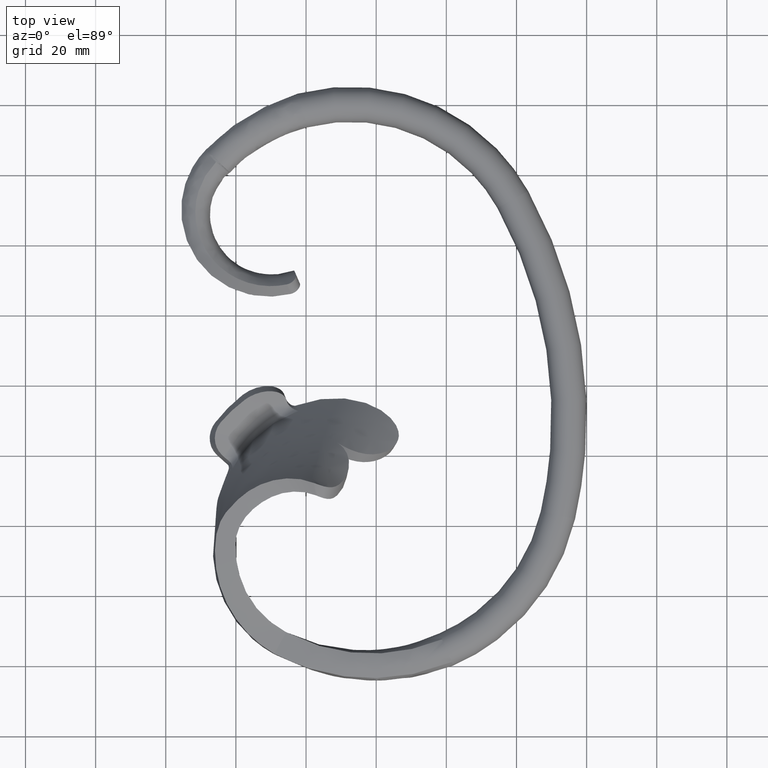
[diagram: clean part render]
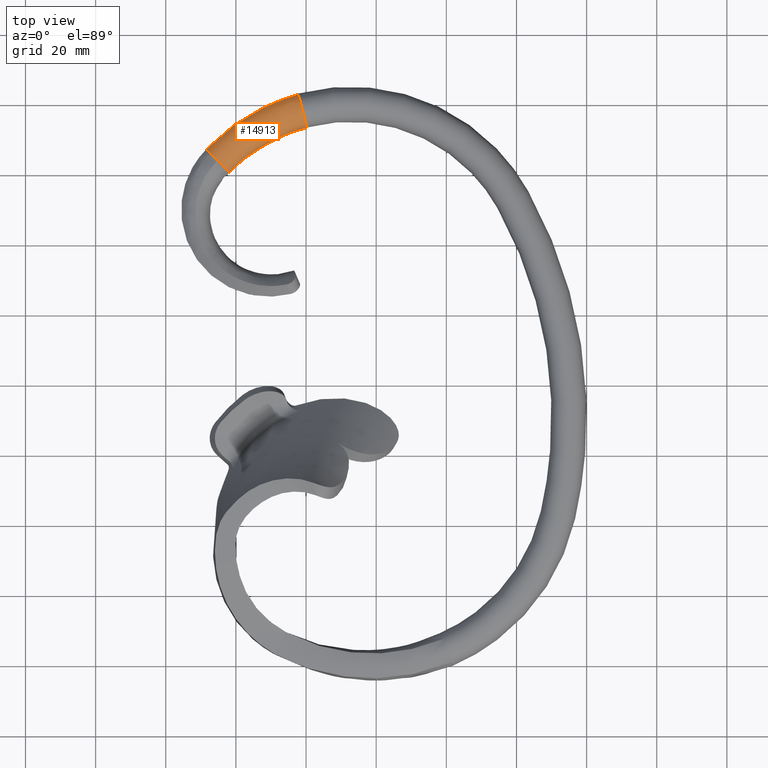
[diagram: same view with one face highlighted and labeled with its STEP entity id]
A machine part, top view. The second image highlights one B-rep face of the part: STEP entity #14913.
In plain terms, the highlighted face is a freeform B-spline surface patch.
Its self-contained STEP definition (entity closure, byte-faithful):
#59 = CARTESIAN_POINT ( 'NONE',  ( -33.75661524009544934, 76.44459175784362515, 4.001176711800991548 ) ) ;
#128 = CARTESIAN_POINT ( 'NONE',  ( -21.33129191050896267, 79.44981101638704502, -4.855650991904729707 ) ) ;
#219 = CARTESIAN_POINT ( 'NONE',  ( -38.27567860736316874, 75.36293993091466348, -2.450642124946494693 ) ) ;
#305 = CARTESIAN_POINT ( 'NONE',  ( -24.43131856076619712, 80.03802646933051790, -4.069290059552198358 ) ) ;
#401 = CARTESIAN_POINT ( 'NONE',  ( -43.86527647112217920, 66.37998434814649329, -4.800026520905685601 ) ) ;
#423 = VERTEX_POINT ( 'NONE', #9189 ) ;
#494 = CARTESIAN_POINT ( 'NONE',  ( -46.02842196195974367, 68.63768278733306261, -3.167214742826761409 ) ) ;
#575 = CARTESIAN_POINT ( 'NONE',  ( -37.67193210413226012, 65.19235450495493467, -2.594865940423247253 ) ) ;
#667 = CARTESIAN_POINT ( 'NONE',  ( -38.22289297818827691, 65.88322461704088084, -3.704388020283263749 ) ) ;
#761 = CARTESIAN_POINT ( 'NONE',  ( -19.95244530281783213, 74.28245935362140528, -2.952673996220911423 ) ) ;
#845 = CARTESIAN_POINT ( 'NONE',  ( -32.17612332047424673, 73.45509277181751884, -5.015409469688129285 ) ) ;
#926 = CARTESIAN_POINT ( 'NONE',  ( -27.90833108733299994, 77.20346748790321101, -5.041136408086669185 ) ) ;
#1016 = CARTESIAN_POINT ( 'NONE',  ( -29.96943906736014185, 69.31548139771383887, 0.1632741475085065230 ) ) ;
#1108 = CARTESIAN_POINT ( 'NONE',  ( -28.07696735783793329, 77.59888251593031328, 4.912221667707645345 ) ) ;
#1194 = CARTESIAN_POINT ( 'NONE',  ( -33.24488282676795592, 67.39562244027075621, 0.1215459145303848798 ) ) ;
#1281 = CARTESIAN_POINT ( 'NONE',  ( -20.38785719473731461, 75.91420457542328393, 4.427897195243049033 ) ) ;
#1362 = CARTESIAN_POINT ( 'NONE',  ( -21.00000000000000000, 78.20826478848864838, 0.000000000000000000 ) ) ;
#1377 = CARTESIAN_POINT ( 'NONE',  ( -38.99248552125383327, 66.84023314072635458, 4.591982440538111554 ) ) ;
#1384 = CARTESIAN_POINT ( 'NONE',  ( -38.37690223035112780, 75.51857925070751776, 2.050560215646361151 ) ) ;
#1650 = ORIENTED_EDGE ( 'NONE', *, *, #1993, .F. ) ;
#1743 = VERTEX_POINT ( 'NONE', #15379 ) ;
#1790 = CARTESIAN_POINT ( 'NONE',  ( -34.24624260972301215, 77.39133895014144571, 2.888446358087487287 ) ) ;
#1866 = CARTESIAN_POINT ( 'NONE',  ( -42.90840159392850239, 71.88651045622061986, 2.924896501369423252 ) ) ;
#1947 = CARTESIAN_POINT ( 'NONE',  ( -36.82915807503427885, 73.09908892709803752, 4.713174517830449162 ) ) ;
#1993 = EDGE_CURVE ( 'NONE', #17794, #16706, #8955, .T. ) ;
#2042 = CARTESIAN_POINT ( 'NONE',  ( -28.39004536156215508, 78.36375872735219161, 4.562292909001254060 ) ) ;
#2054 = CARTESIAN_POINT ( 'NONE',  ( -24.91130560114157788, 81.67287426532062966, -2.224188239590051186 ) ) ;
#2126 = CARTESIAN_POINT ( 'NONE',  ( -24.20461831351227389, 79.27271236793798437, 4.459930097319928954 ) ) ;
#2194 = CARTESIAN_POINT ( 'NONE',  ( -34.15658277091277739, 77.22438594092234609, -3.149886056614628504 ) ) ;
#2283 = CARTESIAN_POINT ( 'NONE',  ( -34.30183958299932812, 77.50772969468395956, -2.726740867371829413 ) ) ;
#2378 = CARTESIAN_POINT ( 'NONE',  ( -34.01914835951998839, 76.95776721383965935, -3.484475306054684030 ) ) ;
#2461 = CARTESIAN_POINT ( 'NONE',  ( -21.11680539531091938, 78.64600351179045390, -5.004997153753529382 ) ) ;
#2556 = CARTESIAN_POINT ( 'NONE',  ( -29.07108997613298129, 79.95972208728490216, -2.958210013340496491 ) ) ;
#2647 = CARTESIAN_POINT ( 'NONE',  ( -42.50858147601849168, 61.18550559039891112, -3.098856988022574033 ) ) ;
#2711 = FACE_OUTER_BOUND ( 'NONE', #18752, .T. ) ;
#2737 = CARTESIAN_POINT ( 'NONE',  ( -25.86469223668699513, 72.08157152145126645, -2.568027986525772466 ) ) ;
#2816 = CARTESIAN_POINT ( 'NONE',  ( -30.03014030382706778, 69.42992741343780949, -1.136545704554986713 ) ) ;
#2902 = CARTESIAN_POINT ( 'NONE',  ( -30.64310499873029769, 70.57854932330342024, -3.522101739659182940 ) ) ;
#2993 = CARTESIAN_POINT ( 'NONE',  ( -38.91238482696502388, 66.74853934776355402, -4.525505627457151014 ) ) ;
#3003 = ORIENTED_EDGE ( 'NONE', *, *, #13643, .T. ) ;
#3082 = CARTESIAN_POINT ( 'NONE',  ( -34.10429337125184901, 68.76419272483794032, 3.693962439798602837 ) ) ;
#3168 = CARTESIAN_POINT ( 'NONE',  ( -22.94748469979353800, 75.35563082319836781, 4.401585358226729028 ) ) ;
#3257 = CARTESIAN_POINT ( 'NONE',  ( -37.24362757399244828, 64.65322893192700349, 0.06832415035877048570 ) ) ;
#3352 = CARTESIAN_POINT ( 'NONE',  ( -23.23149926347431915, 76.20431600410518058, 4.696540833647271818 ) ) ;
#3840 = CARTESIAN_POINT ( 'NONE',  ( -44.48325129364662445, 63.10474127815896139, 4.879903448419870671 ) ) ;
#3915 = CIRCLE ( 'NONE', #26061, 5.000000000000001776 ) ;
#3932 = CARTESIAN_POINT ( 'NONE',  ( -21.46993003244896414, 79.96936984616054644, 4.680415473810142224 ) ) ;
#4021 = CARTESIAN_POINT ( 'NONE',  ( -23.76058843480954863, 77.83998314549214115, 4.813681712727877482 ) ) ;
#4063 = B_SPLINE_CURVE_WITH_KNOTS ( 'NONE', 3,
 ( #24939, #2054, #8643, #4112, #18544, #14563, #18631, #6203 ),
 .UNSPECIFIED., .F., .F.,
 ( 4, 1, 1, 1, 1, 4 ),
 ( 0.000000000000000000, 0.2806285649295907070, 0.4407128234652648024, 0.5606540790344978209, 0.7204156435433307637, 1.000000000000000000 ),
 .UNSPECIFIED. ) ;
#4101 = CARTESIAN_POINT ( 'NONE',  ( -24.69041554384972414, 80.89915853899981357, 3.339287336824743768 ) ) ;
#4112 = CARTESIAN_POINT ( 'NONE',  ( -34.41738686978619910, 77.73442096479611507, -2.257105024908608648 ) ) ;
#4181 = DIRECTION ( 'NONE',  ( -0.7171005797696503592, 0.6969696969696970168, 0.000000000000000000 ) ) ;
#4261 = CARTESIAN_POINT ( 'NONE',  ( -43.05967020388412436, 72.11956077784482488, -2.418183289885798004 ) ) ;
#4278 = CARTESIAN_POINT ( 'NONE',  ( -22.21257077063559748, 82.75248279860988987, 1.697043900551020501 ) ) ;
#4349 = CARTESIAN_POINT ( 'NONE',  ( -46.82553726366158742, 65.38127317451034060, -4.575854562082731114 ) ) ;
#4433 = CARTESIAN_POINT ( 'NONE',  ( -24.25860245917663249, 79.46099478172853026, -4.383718426406215229 ) ) ;
#4526 = CARTESIAN_POINT ( 'NONE',  ( -45.22683721997497486, 67.81109344908620074, -4.102491234339762372 ) ) ;
#4626 = CARTESIAN_POINT ( 'NONE',  ( -28.97728137170708962, 79.75330099438964737, -3.279886154063190506 ) ) ;
#4668 = CIRCLE ( 'NONE', #17228, 4.999717346982712307 ) ;
#4708 = CARTESIAN_POINT ( 'NONE',  ( -33.03600392278087838, 75.07845976985082359, -4.791043754142116029 ) ) ;
#4798 = CARTESIAN_POINT ( 'NONE',  ( -40.28190442350210532, 62.40767744119479232, -2.024002310233628421 ) ) ;
#4886 = CARTESIAN_POINT ( 'NONE',  ( -22.13440906602483338, 72.98356826243873741, -1.879372590019820821 ) ) ;
#4978 = CARTESIAN_POINT ( 'NONE',  ( -25.67075842399061258, 71.59091928407534056, -1.172615759216745657 ) ) ;
#5052 = DIRECTION ( 'NONE',  ( -0.2578173421207258786, 0.9661936752545033924, 0.000000000000000000 ) ) ;
#5061 = CARTESIAN_POINT ( 'NONE',  ( -31.13182949633936758, 71.49433565191131379, -4.340406535408480870 ) ) ;
#5137 = DIRECTION ( 'NONE',  ( 0.9661936752545035034, 0.2578173421207256011, 0.000000000000000000 ) ) ;
#5152 = CARTESIAN_POINT ( 'NONE',  ( -42.90748740076845280, 61.57321318586849657, 3.701190262911312256 ) ) ;
#5248 = CARTESIAN_POINT ( 'NONE',  ( -41.08588871819923583, 69.48466285462933456, 5.028717773616692810 ) ) ;
#5341 = CARTESIAN_POINT ( 'NONE',  ( -30.75693099044489287, 70.78732611560330668, 3.747655546749841360 ) ) ;
#5391 = CARTESIAN_POINT ( 'NONE',  ( -29.30510315083973438, 80.46675747739956819, 1.844913662470228255 ) ) ;
#5429 = CARTESIAN_POINT ( 'NONE',  ( -31.26976326820112817, 71.74755263416724915, 4.496997473973045167 ) ) ;
#5802 = ORIENTED_EDGE ( 'NONE', *, *, #19360, .F. ) ;
#5839 = CARTESIAN_POINT ( 'NONE',  ( -37.19806621471327190, 73.68146087463580329, 4.406317632631708392 ) ) ;
#5890 = CIRCLE ( 'NONE', #26714, 4.999717346982712307 ) ;
#5931 = CARTESIAN_POINT ( 'NONE',  ( -46.82552833464944797, 65.38126449615910474, 4.575855879535176918 ) ) ;
#6013 = CARTESIAN_POINT ( 'NONE',  ( -34.11990636451294279, 77.14534841736306703, 3.242049360851920969 ) ) ;
#6100 = CARTESIAN_POINT ( 'NONE',  ( -42.59194641700560169, 71.44890518241244592, 3.628287422009904617 ) ) ;
#6191 = CARTESIAN_POINT ( 'NONE',  ( -29.28319982271617405, 80.41967639622889408, 1.969995115372052075 ) ) ;
#6203 = CARTESIAN_POINT ( 'NONE',  ( -48.52009528344655109, 67.02826053286189278, -2.313731911132931085 ) ) ;
#6350 = CARTESIAN_POINT ( 'NONE',  ( -21.95351636451822586, 81.78165311477802391, -3.448620944295407220 ) ) ;
#6439 = CARTESIAN_POINT ( 'NONE',  ( -33.84774108657286007, 76.62700926305370785, -3.835754033784848360 ) ) ;
#6536 = CARTESIAN_POINT ( 'NONE',  ( -38.18517226228646422, 75.22419272297027248, -2.741563457844755636 ) ) ;
#6629 = CARTESIAN_POINT ( 'NONE',  ( -47.95850182729300570, 66.48243246913152404, -3.495791454869503490 ) ) ;
#6719 = CARTESIAN_POINT ( 'NONE',  ( -23.35463659085717225, 76.56956182423790835, -4.746759620666860080 ) ) ;
#6805 = CARTESIAN_POINT ( 'NONE',  ( -40.99646089730475751, 69.38189887049848892, -5.049633835915598112 ) ) ;
#6899 = CARTESIAN_POINT ( 'NONE',  ( -19.71359077238328794, 73.38733052049684602, -0.6028323967014517226 ) ) ;
#6983 = CARTESIAN_POINT ( 'NONE',  ( -33.57270779808365546, 67.92037402596483275, -2.447939349864321379 ) ) ;
#7070 = CARTESIAN_POINT ( 'NONE',  ( -31.66047348419995799, 72.48600113985276039, -4.819951881958610684 ) ) ;
#7161 = CARTESIAN_POINT ( 'NONE',  ( -22.41004063069371455, 73.78656625795137813, 3.222481914568049444 ) ) ;
#7254 = CARTESIAN_POINT ( 'NONE',  ( -41.94280229894774692, 60.63560930985000397, 1.660724216993091140 ) ) ;
#7336 = CARTESIAN_POINT ( 'NONE',  ( -42.80570826831149844, 65.23948384126225619, 4.769117740641310554 ) ) ;
#7423 = CARTESIAN_POINT ( 'NONE',  ( -42.18409971152630078, 60.87013287498001546, 2.415203614481327588 ) ) ;
#7520 = CARTESIAN_POINT ( 'NONE',  ( -25.62288569266813099, 71.46778754347775475, 0.2168331686078710796 ) ) ;
#7931 = CARTESIAN_POINT ( 'NONE',  ( -37.93266050784514221, 74.83244862000537978, 3.315299661288765520 ) ) ;
#8009 = CARTESIAN_POINT ( 'NONE',  ( -34.37755439737401986, 77.64853568691820840, 2.445197366038036613 ) ) ;
#8069 = CARTESIAN_POINT ( 'NONE',  ( -24.97182601942409264, 81.86323955700810018, 1.754566506919710500 ) ) ;
#8097 = CARTESIAN_POINT ( 'NONE',  ( -21.66572662087767043, 80.70313516939332033, 4.308998662728329876 ) ) ;
#8188 = CARTESIAN_POINT ( 'NONE',  ( -29.24525318142901398, 80.34232475700929399, 2.199300204438791706 ) ) ;
#8272 = CARTESIAN_POINT ( 'NONE',  ( -42.34597651185181633, 71.11962178659257461, 4.023305057330287759 ) ) ;
#8336 = CARTESIAN_POINT ( 'NONE',  ( -42.71459958285257841, 71.62937441388551463, -3.358636142394512802 ) ) ;
#8426 = CARTESIAN_POINT ( 'NONE',  ( -37.64479229556548745, 74.38636973185367651, -3.849458963025349068 ) ) ;
#8523 = CARTESIAN_POINT ( 'NONE',  ( -28.49147665601697454, 78.62209784641152055, -4.412674539719561473 ) ) ;
#8611 = CARTESIAN_POINT ( 'NONE',  ( -38.01074711971329378, 74.95511108111496412, -3.164652241659455356 ) ) ;
#8643 = CARTESIAN_POINT ( 'NONE',  ( -29.23884779591265470, 80.31212781028524716, -2.238656259178700925 ) ) ;
#8697 = CARTESIAN_POINT ( 'NONE',  ( -21.72617246591361351, 80.92966140959411803, -4.159397743060502251 ) ) ;
#8792 = CARTESIAN_POINT ( 'NONE',  ( -41.11005875776215390, 63.34891039034197746, -3.653665506000562502 ) ) ;
#8883 = CARTESIAN_POINT ( 'NONE',  ( -35.14628887964170190, 70.43195544116719020, -4.818190965967588113 ) ) ;
#8955 = B_SPLINE_CURVE_WITH_KNOTS ( 'NONE', 3,
 ( #9470, #17738, #17929, #15654, #19893, #5391, #15935, #21860 ),
 .UNSPECIFIED., .F., .F.,
 ( 4, 1, 1, 1, 1, 4 ),
 ( 0.000000000000000000, 0.2795843564566692363, 0.4393459209655021791, 0.5592871765347351420, 0.7193714350704092375, 1.000000000000000000 ),
 .UNSPECIFIED. ) ;
#8971 = CARTESIAN_POINT ( 'NONE',  ( -33.31732573580184464, 67.51205209529858564, -1.166498908979449300 ) ) ;
#9051 = CARTESIAN_POINT ( 'NONE',  ( -40.06184021620736502, 62.15745566228191166, -1.014782880247826036 ) ) ;
#9147 = CARTESIAN_POINT ( 'NONE',  ( -41.64177897996585642, 63.94804770638543090, -4.199956612303846093 ) ) ;
#9189 = CARTESIAN_POINT ( 'NONE',  ( -48.52009528344655109, 67.02826053286189278, -2.313731911132931085 ) ) ;
#9236 = CARTESIAN_POINT ( 'NONE',  ( -23.50306779578830074, 77.03378872133974653, 4.824139165351993164 ) ) ;
#9253 = VERTEX_POINT ( 'NONE', #14448 ) ;
#9320 = CARTESIAN_POINT ( 'NONE',  ( -20.20422776923148334, 75.22603678944416572, 3.963812199743526943 ) ) ;
#9414 = CARTESIAN_POINT ( 'NONE',  ( -25.95833708074900059, 72.30570469059715322, 2.932284402960190217 ) ) ;
#9470 = CARTESIAN_POINT ( 'NONE',  ( -48.52009528344655109, 67.02826053286189278, 2.313731911132932417 ) ) ;
#9507 = CARTESIAN_POINT ( 'NONE',  ( -26.78586067021907269, 74.38289641746563063, 4.745888046816913786 ) ) ;
#9594 = CARTESIAN_POINT ( 'NONE',  ( -26.33371350804321764, 73.24818055836693986, 4.005982925969529873 ) ) ;
#9946 = DIRECTION ( 'NONE',  ( 0.6969696969696971278, 0.7171005797696503592, 0.000000000000000000 ) ) ;
#9996 = CARTESIAN_POINT ( 'NONE',  ( -28.97277018662184389, 79.74476316615610472, 3.312521223176175589 ) ) ;
#10081 = CARTESIAN_POINT ( 'NONE',  ( -24.55063403191423888, 80.42522338789686387, 3.771650359351201409 ) ) ;
#10171 = CARTESIAN_POINT ( 'NONE',  ( -37.49872889787538099, 74.15429192137763437, 4.057024620887583310 ) ) ;
#10255 = CARTESIAN_POINT ( 'NONE',  ( -22.16060644282967829, 82.55774180697629561, 2.255576506147394245 ) ) ;
#10333 = CARTESIAN_POINT ( 'NONE',  ( -45.34180890475054326, 63.93919693880619093, 0.000000000000000000 ) ) ;
#10339 = CARTESIAN_POINT ( 'NONE',  ( -45.69084234619456453, 64.27843210159707610, 5.000016001206105898 ) ) ;
#10407 = CARTESIAN_POINT ( 'NONE',  ( -42.27307957555216689, 71.03550453067778392, -4.102242132903013427 ) ) ;
#10502 = CARTESIAN_POINT ( 'NONE',  ( -42.85619960622444324, 71.82617113340172921, -3.034315691297357898 ) ) ;
#10517 = DIRECTION ( 'NONE',  ( -0.6969696969696971278, -0.7171005797696503592, -0.000000000000000000 ) ) ;
#10584 = CARTESIAN_POINT ( 'NONE',  ( -24.75955981587451760, 81.15185385624036485, -3.111752501646782854 ) ) ;
#10675 = CARTESIAN_POINT ( 'NONE',  ( -22.08787970886268326, 82.28519183107930246, -2.747319903653727025 ) ) ;
#10776 = CARTESIAN_POINT ( 'NONE',  ( -24.58361790517461642, 80.55231902432754509, -3.692091147008314866 ) ) ;
#10862 = CARTESIAN_POINT ( 'NONE',  ( -34.00638522878003300, 68.61319600246036998, -3.527717859523832100 ) ) ;
#10945 = CARTESIAN_POINT ( 'NONE',  ( -27.08397560148114280, 75.15163701021316456, -5.025616275168210301 ) ) ;
#11002 = CARTESIAN_POINT ( 'NONE',  ( -48.52009528344655109, 67.02826053286189278, 2.313731911132936858 ) ) ;
#11034 = CARTESIAN_POINT ( 'NONE',  ( -37.34344476923314460, 64.77965503506565881, -1.264399399245298206 ) ) ;
#11122 = CARTESIAN_POINT ( 'NONE',  ( -32.63770815754335075, 74.32497552378366379, -4.981140482087972998 ) ) ;
#11203 = CARTESIAN_POINT ( 'NONE',  ( -22.54932320015124247, 74.17473154742388886, -3.582763599640452767 ) ) ;
#11293 = CARTESIAN_POINT ( 'NONE',  ( -41.73890792113017767, 60.43743877878306137, -1.252187640686172609E-07 ) ) ;
#11384 = CARTESIAN_POINT ( 'NONE',  ( -43.37525226545506030, 62.02784667131110297, 4.207884977522748926 ) ) ;
#11471 = CARTESIAN_POINT ( 'NONE',  ( -39.99074109269545829, 62.07691483639104746, 0.02657046057741013420 ) ) ;
#11556 = CARTESIAN_POINT ( 'NONE',  ( -34.67198375662484722, 69.66924299975283930, 4.453535693739042678 ) ) ;
#11647 = CARTESIAN_POINT ( 'NONE',  ( -35.86068218082666448, 71.56248843019386641, 5.019429965617894673 ) ) ;
#12055 = CARTESIAN_POINT ( 'NONE',  ( -45.24968256833540181, 67.83749879615687917, 4.063061236431801504 ) ) ;
#12131 = CARTESIAN_POINT ( 'NONE',  ( -46.04554611807278519, 68.65745554127569505, 3.121342471311203237 ) ) ;
#12218 = CARTESIAN_POINT ( 'NONE',  ( -21.84211655264772034, 81.36417230154630431, 3.816416804820659259 ) ) ;
#12307 = CARTESIAN_POINT ( 'NONE',  ( -44.39005951495562385, 66.93889817952566546, 4.620183478827372348 ) ) ;
#12398 = CARTESIAN_POINT ( 'NONE',  ( -42.02382252451065625, 70.69521542744240605, 4.405663896835566362 ) ) ;
#12459 = CARTESIAN_POINT ( 'NONE',  ( -34.37625673725321462, 77.65394561780577476, -2.436037631539171855 ) ) ;
#12548 = CARTESIAN_POINT ( 'NONE',  ( -37.39261457399307886, 73.99157378445298150, -4.202647554387077378 ) ) ;
#12642 = CARTESIAN_POINT ( 'NONE',  ( -20.89330953599652929, 77.80843267990286449, -5.007900542905596275 ) ) ;
#12735 = CARTESIAN_POINT ( 'NONE',  ( -46.27042960983921915, 64.84174883973123826, -4.851463599087941780 ) ) ;
#12821 = CARTESIAN_POINT ( 'NONE',  ( -48.52009528344655109, 67.02826053286189278, -2.313731911132937746 ) ) ;
#12908 = CARTESIAN_POINT ( 'NONE',  ( -19.75911169043931892, 73.55792425463380368, -1.440863961809425664 ) ) ;
#12998 = CARTESIAN_POINT ( 'NONE',  ( -41.52431111403511466, 70.05887805628456988, -4.799224128583533755 ) ) ;
#13086 = CARTESIAN_POINT ( 'NONE',  ( -44.48316639832532360, 63.10465876607079849, -4.879917861257934142 ) ) ;
#13165 = CARTESIAN_POINT ( 'NONE',  ( -36.25000445217241918, 72.18768270841808032, -4.984966026252355853 ) ) ;
#13255 = CARTESIAN_POINT ( 'NONE',  ( -28.23221252224206523, 77.99657511777535035, -4.763375194690839365 ) ) ;
#13328 = B_SPLINE_SURFACE_WITH_KNOTS ( 'NONE', 3, 3, ( 
 ( #20563, #14259, #24803, #21019, #14885, #19044, #16612, #12821 ),
 ( #10675, #25077, #25170, #12459, #219, #4261, #18684, #24897 ),
 ( #6350, #10584, #23096, #2283, #6536, #14701, #494, #6629 ),
 ( #8697, #10776, #2556, #2194, #8611, #10502, #20745, #16974 ),
 ( #18779, #305, #4626, #2378, #20654, #8336, #4526, #4349 ),
 ( #128, #4433, #16699, #6439, #8426, #14618, #20920, #12735 ),
 ( #2461, #22729, #22812, #16785, #12548, #10407, #14519, #23010 ),
 ( #12642, #20832, #8523, #22910, #24990, #18866, #401, #14790 ),
 ( #16884, #18951, #13255, #4708, #19138, #12998, #15232, #13086 ),
 ( #14978, #6719, #926, #11122, #13165, #6805, #19304, #17412 ),
 ( #15319, #25435, #23535, #845, #25614, #17151, #19220, #21109 ),
 ( #17058, #21191, #10945, #7070, #8883, #23371, #9147, #15059 ),
 ( #761, #11203, #19393, #5061, #21451, #2993, #8792, #2647 ),
 ( #23281, #25351, #23186, #2902, #10862, #667, #15142, #25266 ),
 ( #12908, #4886, #2737, #25523, #6983, #575, #4798, #21370 ),
 ( #6899, #21279, #4978, #2816, #8971, #11034, #9051, #17244 ),
 ( #17323, #23451, #7520, #1016, #1194, #3257, #11471, #11293 ),
 ( #21895, #23797, #15412, #25880, #26054, #21723, #23888, #13525 ),
 ( #13435, #15692, #9414, #15603, #17776, #21628, #17682, #7254 ),
 ( #25695, #7161, #9594, #5341, #3082, #19755, #13713, #7423 ),
 ( #21809, #17509, #9507, #5429, #11556, #1377, #25970, #19482 ),
 ( #9320, #3168, #19565, #13347, #13620, #15507, #19658, #5152 ),
 ( #1281, #3352, #19841, #23985, #11647, #23713, #21538, #11384 ),
 ( #25785, #9236, #1108, #23627, #17595, #5248, #7336, #22394 ),
 ( #18194, #4021, #2042, #26547, #1947, #24739, #16186, #3840 ),
 ( #26715, #24562, #22306, #26454, #5839, #12398, #22564, #24655 ),
 ( #18439, #2126, #16548, #59, #10171, #8272, #12307, #10339 ),
 ( #3932, #20238, #9996, #14452, #14367, #6100, #24385, #14189 ),
 ( #8097, #10081, #16451, #6013, #7931, #16360, #12055, #5931 ),
 ( #12218, #4101, #14105, #1790, #26633, #1866, #20500, #18274 ),
 ( #14284, #20323, #8188, #8009, #24470, #18532, #12131, #20585 ),
 ( #10255, #16273, #6191, #18351, #22663, #20417, #22477, #16810 ),
 ( #13652, #8069, #22537, #16878, #1384, #20106, #20537, #11002 ) ),
 .UNSPECIFIED., .F., .F., .F.,
 ( 4, 1, 1, 1, 1, 1, 1, 1, 1, 1, 1, 1, 1, 1, 1, 1, 1, 1, 1, 1, 1, 1, 1, 1, 1, 1, 1, 1, 1, 1, 4 ),
 ( 4, 1, 1, 1, 1, 4 ),
 ( 0.000000000000000000, 0.06250000000000000000, 0.09375000000000000000, 0.1250000000000000000, 0.1562500000000000000, 0.1875000000000000000, 0.2187500000000000000, 0.2500000000000000000, 0.2812500000000000000, 0.3125000000000000000, 0.3437500000000000000, 0.3750000000000000000, 0.4062500000000000000, 0.4375000000000000000, 0.4687500000000000000, 0.5000000000000000000, 0.5312500000000000000, 0.5625000000000000000, 0.5937500000000000000, 0.6250000000000000000, 0.6562500000000000000, 0.6875000000000000000, 0.7187500000000000000, 0.7500000000000000000, 0.7812500000000000000, 0.8125000000000000000, 0.8437500000000000000, 0.8750000000000000000, 0.9062500000000000000, 0.9375000000000000000, 1.000000000000000000 ),
 ( 0.000000000000000000, 0.2806285649295907070, 0.4407128234652648024, 0.5606540790344978209, 0.7204156435433307637, 1.000000000000000000 ),
 .UNSPECIFIED. ) ;
#13347 = CARTESIAN_POINT ( 'NONE',  ( -31.81171629118330912, 72.76404135559728559, 4.902845892705276043 ) ) ;
#13435 = CARTESIAN_POINT ( 'NONE',  ( -19.80873663224488723, 73.74389818684859677, 1.972774193438226353 ) ) ;
#13525 = CARTESIAN_POINT ( 'NONE',  ( -41.79173066172206319, 60.48877864733431409, 0.8559359710842954216 ) ) ;
#13620 = CARTESIAN_POINT ( 'NONE',  ( -35.27627646380540938, 70.63223086959679620, 4.875972298310456310 ) ) ;
#13643 = EDGE_CURVE ( 'NONE', #17794, #1743, #4668, .T. ) ;
#13652 = CARTESIAN_POINT ( 'NONE',  ( -22.21256584344415685, 82.75246433351686903, 1.697036997321476282 ) ) ;
#13713 = CARTESIAN_POINT ( 'NONE',  ( -40.66929141822777183, 62.84902782167077362, 2.953498429729371377 ) ) ;
#14105 = CARTESIAN_POINT ( 'NONE',  ( -29.16352358543789336, 80.16887818320823555, 2.589979884635343677 ) ) ;
#14189 = CARTESIAN_POINT ( 'NONE',  ( -46.27046244679448250, 64.84178075486728687, 4.851458028507262377 ) ) ;
#14259 = CARTESIAN_POINT ( 'NONE',  ( -24.91130560114157788, 81.67287426532062966, -2.224188239590045857 ) ) ;
#14284 = CARTESIAN_POINT ( 'NONE',  ( -22.04742883858718372, 82.13359855695257750, 3.010970948867421004 ) ) ;
#14367 = CARTESIAN_POINT ( 'NONE',  ( -37.74049323800164757, 74.53299244127239831, 3.682451895410883136 ) ) ;
#14448 = CARTESIAN_POINT ( 'NONE',  ( -22.15570349808480444, 82.53936758062033618, -2.214987626055387349 ) ) ;
#14452 = CARTESIAN_POINT ( 'NONE',  ( -33.96029256014425357, 76.83633004508381248, 3.616855301780232512 ) ) ;
#14519 = CARTESIAN_POINT ( 'NONE',  ( -44.36181422640247973, 66.90628652063041670, -4.650866366099643656 ) ) ;
#14563 = CARTESIAN_POINT ( 'NONE',  ( -43.09723046002128655, 72.17406215816406245, -2.290032483260082685 ) ) ;
#14618 = CARTESIAN_POINT ( 'NONE',  ( -42.52615885809683505, 71.37290815538017341, -3.719816394232062784 ) ) ;
#14701 = CARTESIAN_POINT ( 'NONE',  ( -42.99544570134681720, 72.02449758613671804, -2.650880996583671934 ) ) ;
#14790 = CARTESIAN_POINT ( 'NONE',  ( -45.08767938876005843, 63.69220150086096766, -5.010711059578340176 ) ) ;
#14885 = CARTESIAN_POINT ( 'NONE',  ( -38.32549432891537577, 75.43957332128904625, -2.271588102373536255 ) ) ;
#14913 = ADVANCED_FACE ( 'NONE', ( #2711 ), #13328, .T. ) ;
#14978 = CARTESIAN_POINT ( 'NONE',  ( -20.45502331973459320, 76.16591566913766087, -4.559312078858004824 ) ) ;
#15059 = CARTESIAN_POINT ( 'NONE',  ( -42.90750788952222905, 61.57323309944936085, -3.701187415397580338 ) ) ;
#15142 = CARTESIAN_POINT ( 'NONE',  ( -40.64363196973275194, 62.81967448672888565, -2.916553239971570566 ) ) ;
#15232 = CARTESIAN_POINT ( 'NONE',  ( -43.33249897411707252, 65.80908085813307196, -4.848536924846753138 ) ) ;
#15319 = CARTESIAN_POINT ( 'NONE',  ( -20.26339422737899554, 75.44776841222433461, -4.132934777000679460 ) ) ;
#15379 = CARTESIAN_POINT ( 'NONE',  ( -43.71300115122881635, 62.35611406532894563, 4.454199134074905864 ) ) ;
#15412 = CARTESIAN_POINT ( 'NONE',  ( -25.71787191229839209, 71.70357254705002958, 1.589099819743171604 ) ) ;
#15507 = CARTESIAN_POINT ( 'NONE',  ( -39.74082269712866378, 67.78078377705148228, 5.019543787039722815 ) ) ;
#15603 = CARTESIAN_POINT ( 'NONE',  ( -30.33672744039110825, 70.00145756695071952, 2.712624630563055916 ) ) ;
#15654 = CARTESIAN_POINT ( 'NONE',  ( -38.37690223035113490, 75.51857925070751776, 2.050560215646362039 ) ) ;
#15692 = CARTESIAN_POINT ( 'NONE',  ( -22.20115938313438875, 73.18438755369024307, 2.346059266865963888 ) ) ;
#15884 = DIRECTION ( 'NONE',  ( -0.7171005797696503592, 0.6969696969696970168, 0.000000000000000000 ) ) ;
#15935 = CARTESIAN_POINT ( 'NONE',  ( -24.97182601942409264, 81.86323955700810018, 1.754566506919711832 ) ) ;
#16186 = CARTESIAN_POINT ( 'NONE',  ( -43.36568177685476400, 65.84726322002045151, 4.831369558251441987 ) ) ;
#16273 = CARTESIAN_POINT ( 'NONE',  ( -24.93155954621714443, 81.72595503084414759, 2.144474748847407408 ) ) ;
#16360 = CARTESIAN_POINT ( 'NONE',  ( -42.77335872005123463, 71.69728742781019548, 3.257242779363207941 ) ) ;
#16451 = CARTESIAN_POINT ( 'NONE',  ( -29.08123372647060378, 79.98877713400857203, 2.927772302871023857 ) ) ;
#16548 = CARTESIAN_POINT ( 'NONE',  ( -28.82733771926057642, 79.40797373835580686, 3.733646399257574355 ) ) ;
#16612 = CARTESIAN_POINT ( 'NONE',  ( -46.41120069460654918, 69.02940818381688359, -2.304515455103319344 ) ) ;
#16699 = CARTESIAN_POINT ( 'NONE',  ( -28.85579411493935709, 79.47855831380113045, -3.642572444071024762 ) ) ;
#16706 = VERTEX_POINT ( 'NONE', #4278 ) ;
#16785 = CARTESIAN_POINT ( 'NONE',  ( -33.63207882758896261, 76.21335563955557291, -4.190369710270123171 ) ) ;
#16810 = CARTESIAN_POINT ( 'NONE',  ( -48.32914301315669547, 66.84266879062353439, 2.823819397185426183 ) ) ;
#16878 = CARTESIAN_POINT ( 'NONE',  ( -34.47763930873408356, 77.84570998193689206, 1.960119029514671762 ) ) ;
#16884 = CARTESIAN_POINT ( 'NONE',  ( -20.66973771624476441, 76.97057717944502997, -4.860594428295547331 ) ) ;
#16974 = CARTESIAN_POINT ( 'NONE',  ( -47.33937817140826354, 65.88068922836166053, -4.178363840660183293 ) ) ;
#17058 = CARTESIAN_POINT ( 'NONE',  ( -20.09440161127561808, 74.81445338577691473, -3.591718187378065696 ) ) ;
#17151 = CARTESIAN_POINT ( 'NONE',  ( -40.36742772107674426, 68.58247883125510214, -5.138792061891405361 ) ) ;
#17228 = AXIS2_PLACEMENT_3D ( 'NONE', #22341, #9946, #15884 ) ;
#17244 = CARTESIAN_POINT ( 'NONE',  ( -41.79173186961526199, 60.48877982131877218, -0.8559356701235236731 ) ) ;
#17323 = CARTESIAN_POINT ( 'NONE',  ( -19.70623915154182981, 73.35977966025875219, 0.2829449913049858489 ) ) ;
#17412 = CARTESIAN_POINT ( 'NONE',  ( -43.90020686045599518, 62.53806442224103534, -4.603907940865856752 ) ) ;
#17509 = CARTESIAN_POINT ( 'NONE',  ( -22.66723889948511683, 74.53267782327667135, 3.917920557945220317 ) ) ;
#17595 = CARTESIAN_POINT ( 'NONE',  ( -36.38116500890794214, 72.38941896491827777, 4.940662705024132073 ) ) ;
#17682 = CARTESIAN_POINT ( 'NONE',  ( -40.30011101700338827, 62.42849780102321233, 2.069866322813898929 ) ) ;
#17738 = CARTESIAN_POINT ( 'NONE',  ( -46.42475981384048822, 69.04499074818325255, 2.256178727614585267 ) ) ;
#17776 = CARTESIAN_POINT ( 'NONE',  ( -33.64220851265780965, 68.02758174682030301, 2.656544449207918657 ) ) ;
#17794 = VERTEX_POINT ( 'NONE', #21197 ) ;
#17929 = CARTESIAN_POINT ( 'NONE',  ( -43.13209672176783016, 72.21413155784304649, 2.165738201049271616 ) ) ;
#18194 = CARTESIAN_POINT ( 'NONE',  ( -20.81273263260521134, 77.50646348811797282, 4.973756199951709256 ) ) ;
#18274 = CARTESIAN_POINT ( 'NONE',  ( -47.33937839202907583, 65.88068944278873573, 4.178367180378910639 ) ) ;
#18351 = CARTESIAN_POINT ( 'NONE',  ( -34.44238863698833342, 77.77653018282036612, 2.144481291494936048 ) ) ;
#18439 = CARTESIAN_POINT ( 'NONE',  ( -21.26105269927150587, 79.18658325562329026, 4.922398945665248604 ) ) ;
#18532 = CARTESIAN_POINT ( 'NONE',  ( -43.03943430349617216, 72.07529811970982792, 2.532985787074701012 ) ) ;
#18544 = CARTESIAN_POINT ( 'NONE',  ( -38.32549432891537577, 75.43957332128904625, -2.271588102373533147 ) ) ;
#18631 = CARTESIAN_POINT ( 'NONE',  ( -46.41120069460654918, 69.02940818381688359, -2.304515455103314459 ) ) ;
#18684 = CARTESIAN_POINT ( 'NONE',  ( -46.27990095100710732, 68.89479609235390001, -2.666071819184399061 ) ) ;
#18752 = EDGE_LOOP ( 'NONE', ( #23942, #1650, #3003, #5802, #19245 ) ) ;
#18779 = CARTESIAN_POINT ( 'NONE',  ( -21.53662852241705394, 80.21932843554810688, -4.571951369484910543 ) ) ;
#18866 = CARTESIAN_POINT ( 'NONE',  ( -41.94436164438803161, 70.60363421669319450, -4.468951514244229095 ) ) ;
#18951 = CARTESIAN_POINT ( 'NONE',  ( -23.61182101586753390, 77.36972844635768354, -4.822772539174844830 ) ) ;
#19044 = CARTESIAN_POINT ( 'NONE',  ( -43.09723046002130076, 72.17406215816403403, -2.290032483260084017 ) ) ;
#19138 = CARTESIAN_POINT ( 'NONE',  ( -36.70455398264221714, 72.90764104172806981, -4.798462341755933558 ) ) ;
#19220 = CARTESIAN_POINT ( 'NONE',  ( -42.20551815638050641, 64.57685115646577856, -4.569908081570829950 ) ) ;
#19245 = ORIENTED_EDGE ( 'NONE', *, *, #21797, .F. ) ;
#19304 = CARTESIAN_POINT ( 'NONE',  ( -42.77097086648414859, 65.19955902053911245, -4.777246011937770653 ) ) ;
#19360 = EDGE_CURVE ( 'NONE', #423, #1743, #5890, .T. ) ;
#19393 = CARTESIAN_POINT ( 'NONE',  ( -26.62758725931962189, 74.00555053177450304, -4.572287129537728312 ) ) ;
#19482 = CARTESIAN_POINT ( 'NONE',  ( -42.50859242911766955, 61.18551623601590705, 3.098855453296639251 ) ) ;
#19565 = CARTESIAN_POINT ( 'NONE',  ( -27.25562955191148617, 75.55915163204548435, 5.089085737102434948 ) ) ;
#19658 = CARTESIAN_POINT ( 'NONE',  ( -41.67600509840148959, 63.98727152142541286, 4.213883959645660759 ) ) ;
#19755 = CARTESIAN_POINT ( 'NONE',  ( -38.28888339704948862, 65.95871333435989925, 3.799388501525140960 ) ) ;
#19841 = CARTESIAN_POINT ( 'NONE',  ( -27.69729384626073454, 76.65992118059898530, 5.118431942333273810 ) ) ;
#19893 = CARTESIAN_POINT ( 'NONE',  ( -34.47763930873406935, 77.84570998193689206, 1.960119029514660438 ) ) ;
#20106 = CARTESIAN_POINT ( 'NONE',  ( -43.13209672176784437, 72.21413155784304649, 2.165738201049272948 ) ) ;
#20238 = CARTESIAN_POINT ( 'NONE',  ( -24.38881323981194527, 79.88198951377241031, 4.148253855599042694 ) ) ;
#20323 = CARTESIAN_POINT ( 'NONE',  ( -24.84764957795406204, 81.43672658487201943, 2.695200912836082985 ) ) ;
#20417 = CARTESIAN_POINT ( 'NONE',  ( -43.09798470444378182, 72.16370226254834108, 2.296160252355476050 ) ) ;
#20500 = CARTESIAN_POINT ( 'NONE',  ( -45.61621853150214889, 68.21628950828477400, 3.690905733651748566 ) ) ;
#20537 = CARTESIAN_POINT ( 'NONE',  ( -46.42475981384049533, 69.04499074818325255, 2.256178727614587931 ) ) ;
#20563 = CARTESIAN_POINT ( 'NONE',  ( -22.15569720689985189, 82.53934400383894854, -2.214975574656425028 ) ) ;
#20585 = CARTESIAN_POINT ( 'NONE',  ( -47.95853039084854430, 66.48246023083386547, 3.495752058562517028 ) ) ;
#20654 = CARTESIAN_POINT ( 'NONE',  ( -37.84715220281012904, 74.70152237986091848, -3.498909937787930247 ) ) ;
#20745 = CARTESIAN_POINT ( 'NONE',  ( -45.59591759756570895, 68.19282405485094500, -3.733455654650900790 ) ) ;
#20832 = CARTESIAN_POINT ( 'NONE',  ( -23.84927847011147506, 78.12497862012489236, -4.776335542241253229 ) ) ;
#20920 = CARTESIAN_POINT ( 'NONE',  ( -44.81432244423339029, 67.38164739669439030, -4.411378008813341189 ) ) ;
#21019 = CARTESIAN_POINT ( 'NONE',  ( -34.41738686978619910, 77.73442096479611507, -2.257105024908617974 ) ) ;
#21109 = CARTESIAN_POINT ( 'NONE',  ( -43.37521453215249068, 62.02780999728099687, -4.207890241079882188 ) ) ;
#21191 = CARTESIAN_POINT ( 'NONE',  ( -22.81360523649014027, 74.94563032663408819, -4.149557747266962693 ) ) ;
#21197 = CARTESIAN_POINT ( 'NONE',  ( -48.52009528344655109, 67.02826053286189278, 2.313731911132932417 ) ) ;
#21279 = CARTESIAN_POINT ( 'NONE',  ( -22.03115002520193144, 72.68845989500540838, -0.8244992661143256685 ) ) ;
#21370 = CARTESIAN_POINT ( 'NONE',  ( -41.94279939591277184, 60.63560648831081323, -1.660724689901254436 ) ) ;
#21451 = CARTESIAN_POINT ( 'NONE',  ( -34.55337012741022562, 69.48638152258955358, -4.339752730861244245 ) ) ;
#21538 = CARTESIAN_POINT ( 'NONE',  ( -42.24085475042883076, 64.61739514599692313, 4.572202429449191641 ) ) ;
#21628 = CARTESIAN_POINT ( 'NONE',  ( -37.71874443671796939, 65.24588807037117988, 2.712802564189285448 ) ) ;
#21723 = CARTESIAN_POINT ( 'NONE',  ( -37.36711287512322599, 64.80673033999025279, 1.396378154558100659 ) ) ;
#21797 = EDGE_CURVE ( 'NONE', #9253, #423, #4063, .T. ) ;
#21809 = CARTESIAN_POINT ( 'NONE',  ( -20.04466280124291799, 74.62805272214028207, 3.390703477254276343 ) ) ;
#21860 = CARTESIAN_POINT ( 'NONE',  ( -22.21257077063559748, 82.75248279860988987, 1.697043900551020501 ) ) ;
#21895 = CARTESIAN_POINT ( 'NONE',  ( -19.73921506250304958, 73.48335985212742116, 1.159903659435039369 ) ) ;
#22306 = CARTESIAN_POINT ( 'NONE',  ( -28.63629641924185165, 78.95637142750695148, 4.155926517206485649 ) ) ;
#22341 = CARTESIAN_POINT ( 'NONE',  ( -45.34180890475054326, 63.93919693880619093, 0.000000000000000000 ) ) ;
#22394 = CARTESIAN_POINT ( 'NONE',  ( -43.90014119506553669, 62.53800060024952501, 4.603917371883927245 ) ) ;
#22477 = CARTESIAN_POINT ( 'NONE',  ( -46.29480105372685728, 68.91196224737818454, 2.618618354652162861 ) ) ;
#22537 = CARTESIAN_POINT ( 'NONE',  ( -29.30510315083972372, 80.46675747739956819, 1.844913662470220039 ) ) ;
#22564 = CARTESIAN_POINT ( 'NONE',  ( -43.89614685719399745, 66.41556907544884325, 4.775418308831552494 ) ) ;
#22663 = CARTESIAN_POINT ( 'NONE',  ( -38.33191353481879560, 75.44921378816731306, 2.233318716678892368 ) ) ;
#22729 = CARTESIAN_POINT ( 'NONE',  ( -24.06552410348415449, 78.82567499348853346, -4.626673052816669518 ) ) ;
#22812 = CARTESIAN_POINT ( 'NONE',  ( -28.69633617997369157, 79.10783987579560517, -4.032534381471243989 ) ) ;
#22910 = CARTESIAN_POINT ( 'NONE',  ( -33.36431102019267314, 75.70223513368421209, -4.514772568262463537 ) ) ;
#23010 = CARTESIAN_POINT ( 'NONE',  ( -45.69101180238857296, 64.27859680071372850, -4.999991613098026200 ) ) ;
#23096 = CARTESIAN_POINT ( 'NONE',  ( -29.16630769103728227, 80.16278629814591739, -2.582717823607963314 ) ) ;
#23186 = CARTESIAN_POINT ( 'NONE',  ( -26.20221275986734355, 72.93385578518433476, -3.727365402579351450 ) ) ;
#23281 = CARTESIAN_POINT ( 'NONE',  ( -19.83956718458614077, 73.85943845435616595, -2.231758822927320196 ) ) ;
#23371 = CARTESIAN_POINT ( 'NONE',  ( -39.65278059497252627, 67.67989137542971889, -4.983735128888942434 ) ) ;
#23451 = CARTESIAN_POINT ( 'NONE',  ( -22.00803418887721818, 72.62372452584889970, 0.2572250392450394219 ) ) ;
#23535 = CARTESIAN_POINT ( 'NONE',  ( -27.52303212610204142, 76.24852117831747478, -5.158651797247327586 ) ) ;
#23627 = CARTESIAN_POINT ( 'NONE',  ( -32.79068030621522212, 74.60726315675702836, 4.928972770443544427 ) ) ;
#23713 = CARTESIAN_POINT ( 'NONE',  ( -40.45823383666743212, 68.68667703971391347, 5.144700077275330408 ) ) ;
#23797 = CARTESIAN_POINT ( 'NONE',  ( -22.06513441075778914, 72.79095655274765875, 1.326876890804138842 ) ) ;
#23888 = CARTESIAN_POINT ( 'NONE',  ( -40.07104375329389256, 62.16798424364181130, 1.066108201707756109 ) ) ;
#23942 = ORIENTED_EDGE ( 'NONE', *, *, #24695, .F. ) ;
#23985 = CARTESIAN_POINT ( 'NONE',  ( -32.33176108931376547, 73.74171727605593674, 5.026899748292012582 ) ) ;
#24385 = CARTESIAN_POINT ( 'NONE',  ( -44.83992659484547261, 67.41122133779548165, 4.375779958471745168 ) ) ;
#24470 = CARTESIAN_POINT ( 'NONE',  ( -38.24939456841938323, 75.32256811001764163, 2.530928443188743771 ) ) ;
#24562 = CARTESIAN_POINT ( 'NONE',  ( -23.99469359273670577, 78.58883949941909464, 4.685488210168954559 ) ) ;
#24655 = CARTESIAN_POINT ( 'NONE',  ( -45.08762848625078590, 63.69215202731787429, 5.010717066352118998 ) ) ;
#24695 = EDGE_CURVE ( 'NONE', #16706, #9253, #3915, .T. ) ;
#24739 = CARTESIAN_POINT ( 'NONE',  ( -41.60950480464998691, 70.15693148467521212, 4.755102177113499806 ) ) ;
#24803 = CARTESIAN_POINT ( 'NONE',  ( -29.23884779591265470, 80.31212781028524716, -2.238656259178693375 ) ) ;
#24897 = CARTESIAN_POINT ( 'NONE',  ( -48.32914301315669547, 66.84266879062353439, -2.823819397185427071 ) ) ;
#24939 = CARTESIAN_POINT ( 'NONE',  ( -22.15570349808480444, 82.53936758062033618, -2.214987626055387349 ) ) ;
#24990 = CARTESIAN_POINT ( 'NONE',  ( -37.08215744233699951, 73.50355496362551833, -4.525015128472457349 ) ) ;
#25077 = CARTESIAN_POINT ( 'NONE',  ( -24.85959168626586901, 81.49601688850123082, -2.596538243500061238 ) ) ;
#25170 = CARTESIAN_POINT ( 'NONE',  ( -29.21242373563451622, 80.25665796137678853, -2.359743349901918474 ) ) ;
#25266 = CARTESIAN_POINT ( 'NONE',  ( -42.18410548002094629, 60.87013848153790008, -2.415202778896226032 ) ) ;
#25351 = CARTESIAN_POINT ( 'NONE',  ( -22.31487239467535844, 73.49935245298117081, -2.813605275798894301 ) ) ;
#25435 = CARTESIAN_POINT ( 'NONE',  ( -23.08766273353039367, 75.75929094957957943, -4.531976756355548197 ) ) ;
#25523 = CARTESIAN_POINT ( 'NONE',  ( -30.25594983787136627, 69.85336394736678756, -2.431404261266508993 ) ) ;
#25614 = CARTESIAN_POINT ( 'NONE',  ( -35.72704102730541820, 71.35674539779061831, -5.015753334733101809 ) ) ;
#25695 = CARTESIAN_POINT ( 'NONE',  ( -19.91160030811360571, 74.12938906275434192, 2.723579335056859119 ) ) ;
#25785 = CARTESIAN_POINT ( 'NONE',  ( -20.59058873484888963, 76.67395925375207355, 4.768051697696489732 ) ) ;
#25880 = CARTESIAN_POINT ( 'NONE',  ( -30.07092186461893846, 69.50472343588056390, 1.451802947628242579 ) ) ;
#25970 = CARTESIAN_POINT ( 'NONE',  ( -41.14121576139292102, 63.38457563912928805, 3.679516695347590183 ) ) ;
#26054 = CARTESIAN_POINT ( 'NONE',  ( -33.35242147775382904, 67.56618125369261918, 1.401000194671232713 ) ) ;
#26061 = AXIS2_PLACEMENT_3D ( 'NONE', #1362, #5137, #5052 ) ;
#26454 = CARTESIAN_POINT ( 'NONE',  ( -33.50004153927285699, 75.95378438657466802, 4.362496378835103883 ) ) ;
#26547 = CARTESIAN_POINT ( 'NONE',  ( -33.18160331417291076, 75.34773740403474562, 4.684002768059507993 ) ) ;
#26633 = CARTESIAN_POINT ( 'NONE',  ( -38.08676743077891302, 75.07149110960780547, 2.967802467552499657 ) ) ;
#26714 = AXIS2_PLACEMENT_3D ( 'NONE', #10333, #10517, #4181 ) ;
#26715 = CARTESIAN_POINT ( 'NONE',  ( -21.03910376003483407, 78.35480964584206731, 5.022692235160199026 ) ) ;